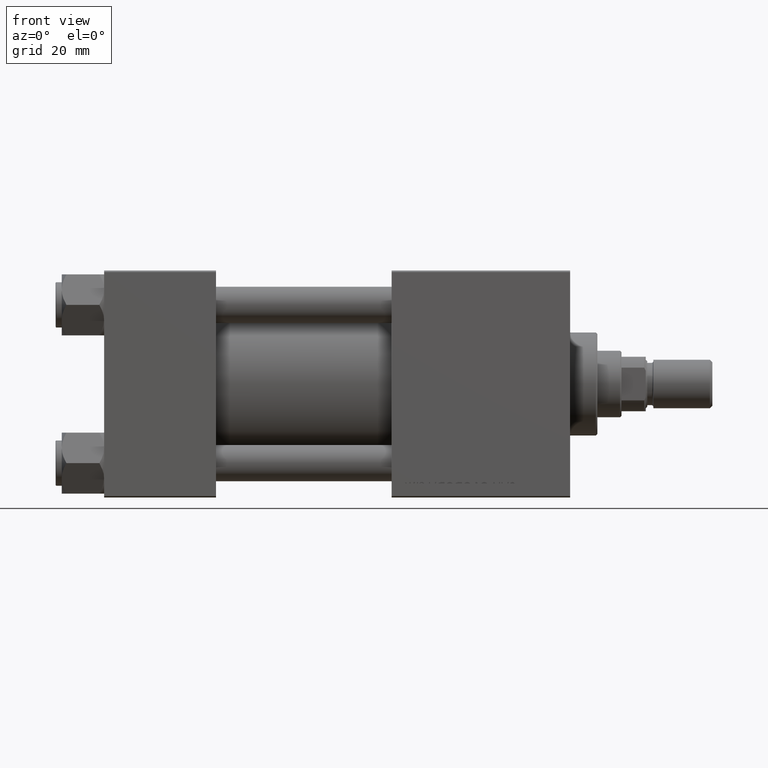
[diagram: clean part render]
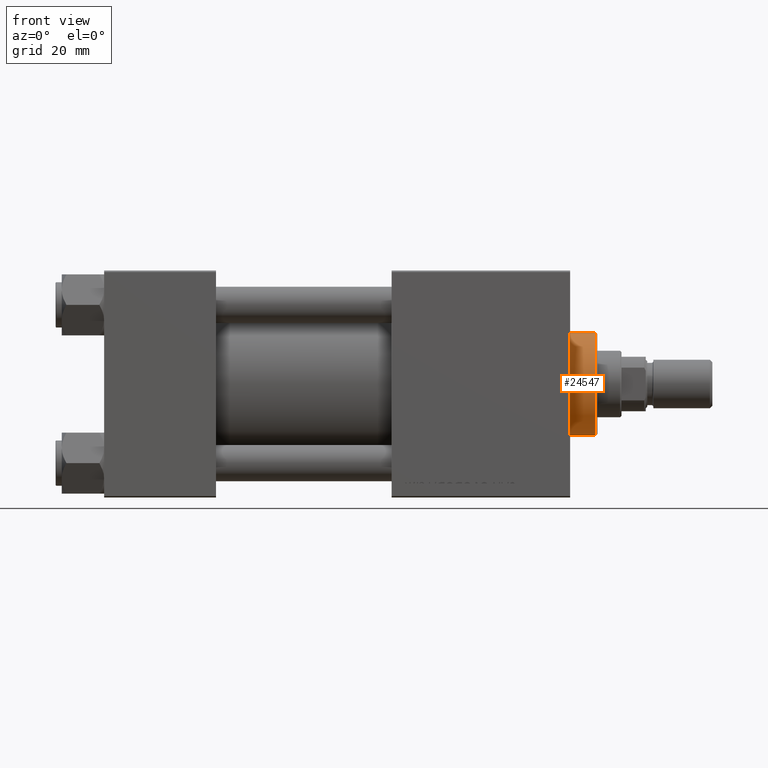
[diagram: same view with one face highlighted and labeled with its STEP entity id]
A machine part, front view. The second image highlights one B-rep face of the part: STEP entity #24547.
In plain terms, the highlighted cylindrical surface (partial cylindrical patch) has radius 17 mm, axis along (-1, -0, 0).
Its self-contained STEP definition (entity closure, byte-faithful):
#265 = CIRCLE ( 'NONE', #36231, 17.00000000000000000 ) ;
#888 = VERTEX_POINT ( 'NONE', #35184 ) ;
#2514 = ORIENTED_EDGE ( 'NONE', *, *, #34847, .T. ) ;
#3809 = CARTESIAN_POINT ( 'NONE',  ( -17.00000000000000000, 0.000000000000000000, 28.69999999999999929 ) ) ;
#5719 = EDGE_CURVE ( 'NONE', #8860, #32671, #38676, .T. ) ;
#6703 = EDGE_CURVE ( 'NONE', #30686, #888, #265, .T. ) ;
#7299 = AXIS2_PLACEMENT_3D ( 'NONE', #11643, #34159, #30565 ) ;
#8860 = VERTEX_POINT ( 'NONE', #46855 ) ;
#9356 = CARTESIAN_POINT ( 'NONE',  ( 0.000000000000000000, 0.000000000000000000, 37.19999999999999574 ) ) ;
#9605 = DIRECTION ( 'NONE',  ( 0.000000000000000000, 0.000000000000000000, -1.000000000000000000 ) ) ;
#9876 = CARTESIAN_POINT ( 'NONE',  ( -17.00000000000000000, 0.000000000000000000, 37.19999999999999574 ) ) ;
#10576 = CARTESIAN_POINT ( 'NONE',  ( 0.000000000000000000, 0.000000000000000000, 28.69999999999999929 ) ) ;
#10724 = DIRECTION ( 'NONE',  ( -0.000000000000000000, -0.000000000000000000, -1.000000000000000000 ) ) ;
#11643 = CARTESIAN_POINT ( 'NONE',  ( 0.000000000000000000, 0.000000000000000000, 37.69999999999999574 ) ) ;
#12890 = LINE ( 'NONE', #20826, #47690 ) ;
#14990 = ORIENTED_EDGE ( 'NONE', *, *, #21881, .F. ) ;
#16569 = AXIS2_PLACEMENT_3D ( 'NONE', #9356, #9605, #44955 ) ;
#16989 = DIRECTION ( 'NONE',  ( -0.000000000000000000, -0.000000000000000000, -1.000000000000000000 ) ) ;
#17888 = CARTESIAN_POINT ( 'NONE',  ( 17.00000000000000000, 2.081899558550500280E-15, 37.69999999999999574 ) ) ;
#17894 = ORIENTED_EDGE ( 'NONE', *, *, #5719, .T. ) ;
#18311 = CYLINDRICAL_SURFACE ( 'NONE', #7299, 17.00000000000000000 ) ;
#20826 = CARTESIAN_POINT ( 'NONE',  ( -17.00000000000000000, 0.000000000000000000, 37.69999999999999574 ) ) ;
#21881 = EDGE_CURVE ( 'NONE', #8860, #888, #47440, .T. ) ;
#24547 = ADVANCED_FACE ( 'NONE', ( #50317 ), #18311, .T. ) ;
#30565 = DIRECTION ( 'NONE',  ( -1.000000000000000000, 0.000000000000000000, 0.000000000000000000 ) ) ;
#30686 = VERTEX_POINT ( 'NONE', #3809 ) ;
#32671 = VERTEX_POINT ( 'NONE', #9876 ) ;
#33826 = DIRECTION ( 'NONE',  ( 1.000000000000000000, 0.000000000000000000, 0.000000000000000000 ) ) ;
#34159 = DIRECTION ( 'NONE',  ( -0.000000000000000000, -0.000000000000000000, -1.000000000000000000 ) ) ;
#34847 = EDGE_CURVE ( 'NONE', #32671, #30686, #12890, .T. ) ;
#35184 = CARTESIAN_POINT ( 'NONE',  ( 17.00000000000000000, 2.081899558550500280E-15, 28.69999999999999929 ) ) ;
#36231 = AXIS2_PLACEMENT_3D ( 'NONE', #10576, #37707, #33826 ) ;
#37707 = DIRECTION ( 'NONE',  ( 0.000000000000000000, 0.000000000000000000, 1.000000000000000000 ) ) ;
#38676 = CIRCLE ( 'NONE', #16569, 17.00000000000000000 ) ;
#44955 = DIRECTION ( 'NONE',  ( 1.000000000000000000, 0.000000000000000000, 0.000000000000000000 ) ) ;
#46855 = CARTESIAN_POINT ( 'NONE',  ( 17.00000000000000000, 2.081899558550500280E-15, 37.19999999999999574 ) ) ;
#47440 = LINE ( 'NONE', #17888, #48085 ) ;
#47617 = EDGE_LOOP ( 'NONE', ( #14990, #17894, #2514, #48819 ) ) ;
#47690 = VECTOR ( 'NONE', #16989, 1000.000000000000000 ) ;
#48085 = VECTOR ( 'NONE', #10724, 1000.000000000000000 ) ;
#48819 = ORIENTED_EDGE ( 'NONE', *, *, #6703, .T. ) ;
#50317 = FACE_OUTER_BOUND ( 'NONE', #47617, .T. ) ;